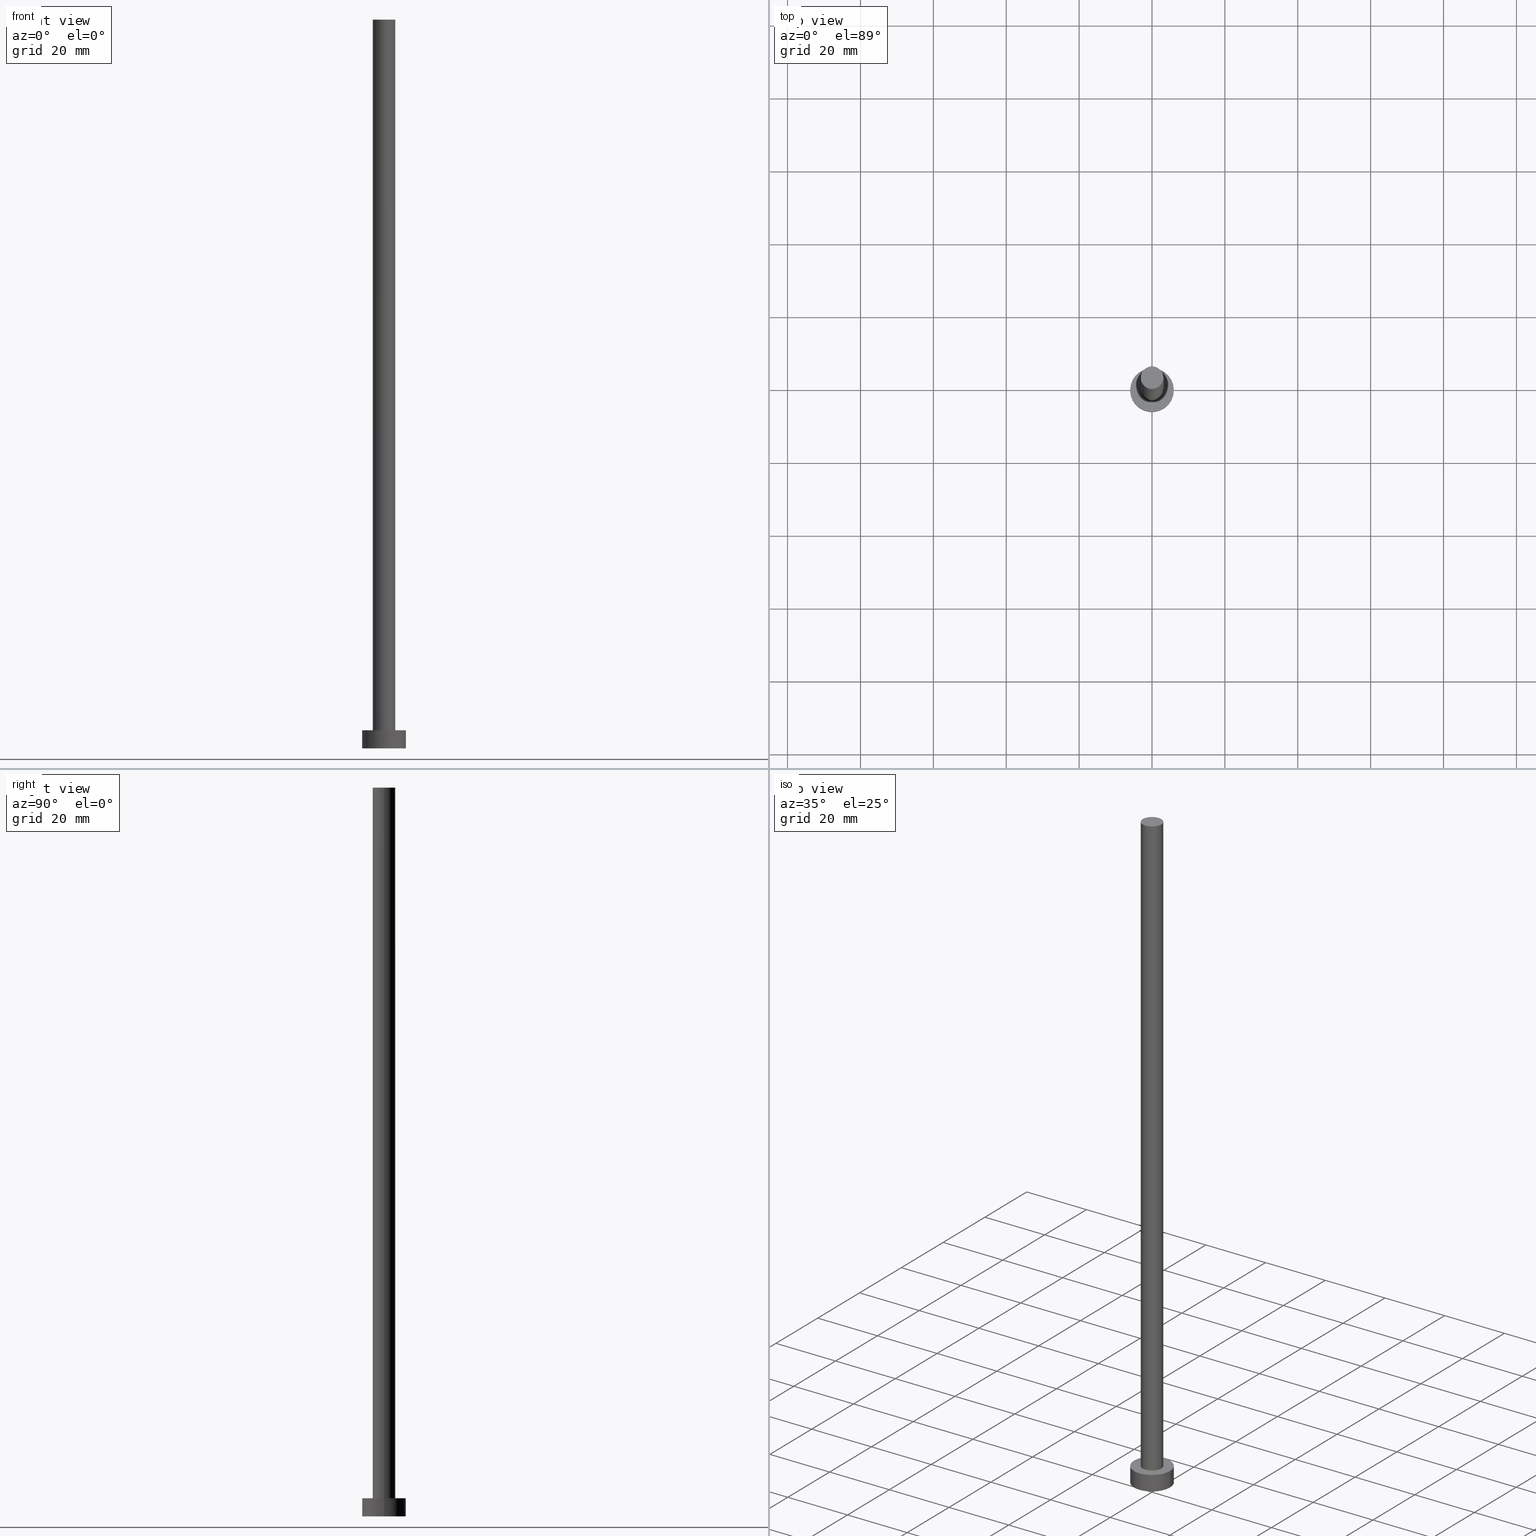
[diagram: canonical four-view strip — front | top / right | iso, engineering-drawing reading convention]
A machine part, canonical four-view strip (front | top / right | iso — engineering-drawing reading convention). The complete STEP part file that produces these views, byte-faithful:
ISO-10303-21;
HEADER;
FILE_DESCRIPTION (( 'STEP AP203' ),
    '1' );
FILE_NAME ('4e26.STEP',
    '2023-02-13T15:20:33',
    ( '' ),
    ( '' ),
    'SwSTEP 2.0',
    'SolidWorks 2019',
    '' );
FILE_SCHEMA (( 'CONFIG_CONTROL_DESIGN' ));
ENDSEC;

DATA;
#1 = LINE ( 'NONE', #76, #29 ) ;
#2 = DIRECTION ( 'NONE',  ( -0.000000000000000000, -0.000000000000000000, -1.000000000000000000 ) ) ;
#3 = CYLINDRICAL_SURFACE ( 'NONE', #182, 3.100000000000000089 ) ;
#4 = AXIS2_PLACEMENT_3D ( 'NONE', #11, #247, #166 ) ;
#5 = CARTESIAN_POINT ( 'NONE',  ( 0.000000000000000000, 0.000000000000000000, 200.0000000000000000 ) ) ;
#6 = CARTESIAN_POINT ( 'NONE',  ( -3.100000000000000089, 0.000000000000000000, 5.000000000000000000 ) ) ;
#7 = CC_DESIGN_PERSON_AND_ORGANIZATION_ASSIGNMENT ( #223, #117, ( #151 ) ) ;
#8 = DIRECTION ( 'NONE',  ( 1.000000000000000000, 0.000000000000000000, -0.000000000000000000 ) ) ;
#9 = ORIENTED_EDGE ( 'NONE', *, *, #19, .F. ) ;
#10 =( LENGTH_UNIT ( ) NAMED_UNIT ( * ) SI_UNIT ( .MILLI., .METRE. ) );
#11 = CARTESIAN_POINT ( 'NONE',  ( 0.000000000000000000, 0.000000000000000000, 5.000000000000000000 ) ) ;
#12 = CIRCLE ( 'NONE', #204, 3.100000000000000089 ) ;
#13 = LOCAL_TIME ( 16, 20, 33.00000000000000000, #255 ) ;
#14 = EDGE_LOOP ( 'NONE', ( #44, #181 ) ) ;
#15 = EDGE_CURVE ( 'NONE', #203, #107, #59, .T. ) ;
#16 = ORIENTED_EDGE ( 'NONE', *, *, #235, .F. ) ;
#17 = CALENDAR_DATE ( 2023, 13, 2 ) ;
#18 = DIRECTION ( 'NONE',  ( 0.000000000000000000, 0.000000000000000000, 1.000000000000000000 ) ) ;
#19 = EDGE_CURVE ( 'NONE', #49, #129, #228, .T. ) ;
#20 = SECURITY_CLASSIFICATION_LEVEL ( 'unclassified' ) ;
#21 = APPROVAL_DATE_TIME ( #192, #153 ) ;
#22 = DIRECTION ( 'NONE',  ( 1.000000000000000000, 0.000000000000000000, 0.000000000000000000 ) ) ;
#23 = DATE_AND_TIME ( #120, #80 ) ;
#24 = DIRECTION ( 'NONE',  ( 1.000000000000000000, 0.000000000000000000, 0.000000000000000000 ) ) ;
#25 = AXIS2_PLACEMENT_3D ( 'NONE', #188, #94, #207 ) ;
#26 = APPROVAL_PERSON_ORGANIZATION ( #51, #153, #237 ) ;
#27 = EDGE_CURVE ( 'NONE', #146, #160, #212, .T. ) ;
#28 = DIRECTION ( 'NONE',  ( 0.000000000000000000, 0.000000000000000000, 1.000000000000000000 ) ) ;
#29 = VECTOR ( 'NONE', #236, 1000.000000000000000 ) ;
#30 = ORIENTED_EDGE ( 'NONE', *, *, #15, .T. ) ;
#31 = EDGE_LOOP ( 'NONE', ( #145, #112 ) ) ;
#32 = EDGE_LOOP ( 'NONE', ( #41, #69 ) ) ;
#33 = LINE ( 'NONE', #73, #142 ) ;
#34 = DIRECTION ( 'NONE',  ( 1.000000000000000000, 0.000000000000000000, 0.000000000000000000 ) ) ;
#35 = ADVANCED_FACE ( 'NONE', ( #128 ), #93, .F. ) ;
#36 = AXIS2_PLACEMENT_3D ( 'NONE', #163, #250, #37 ) ;
#37 = DIRECTION ( 'NONE',  ( -1.000000000000000000, 0.000000000000000000, 0.000000000000000000 ) ) ;
#38 = CC_DESIGN_PERSON_AND_ORGANIZATION_ASSIGNMENT ( #122, #78, ( #104 ) ) ;
#39 = CARTESIAN_POINT ( 'NONE',  ( 0.000000000000000000, 0.000000000000000000, 5.000000000000000000 ) ) ;
#40 = FACE_OUTER_BOUND ( 'NONE', #62, .T. ) ;
#41 = ORIENTED_EDGE ( 'NONE', *, *, #27, .T. ) ;
#42 = DIRECTION ( 'NONE',  ( -0.000000000000000000, -0.000000000000000000, -1.000000000000000000 ) ) ;
#43 = CALENDAR_DATE ( 2023, 13, 2 ) ;
#44 = ORIENTED_EDGE ( 'NONE', *, *, #152, .F. ) ;
#45 = DESIGN_CONTEXT ( 'detailed design', #123, 'design' ) ;
#46 = APPROVAL ( #109, 'NEUR�EN�' ) ;
#47 = ORIENTED_EDGE ( 'NONE', *, *, #235, .T. ) ;
#48 = AXIS2_PLACEMENT_3D ( 'NONE', #133, #67, #113 ) ;
#49 = VERTEX_POINT ( 'NONE', #90 ) ;
#50 = CALENDAR_DATE ( 2023, 13, 2 ) ;
#51 = PERSON_AND_ORGANIZATION ( #232, #174 ) ;
#52 = CARTESIAN_POINT ( 'NONE',  ( -3.100000000000000089, 0.000000000000000000, 200.0000000000000000 ) ) ;
#53 = AXIS2_PLACEMENT_3D ( 'NONE', #206, #18, #191 ) ;
#54 = APPROVAL_STATUS ( 'not_yet_approved' ) ;
#55 = CARTESIAN_POINT ( 'NONE',  ( 6.000000000000000888, 7.347880794884120722E-16, 0.000000000000000000 ) ) ;
#56 = AXIS2_PLACEMENT_3D ( 'NONE', #159, #71, #34 ) ;
#57 = CALENDAR_DATE ( 2023, 13, 2 ) ;
#58 = APPROVAL ( #54, 'NEUR�EN�' ) ;
#59 = CIRCLE ( 'NONE', #56, 6.000000000000000888 ) ;
#60 = CC_DESIGN_PERSON_AND_ORGANIZATION_ASSIGNMENT ( #168, #231, ( #246 ) ) ;
#61 = PERSON_AND_ORGANIZATION ( #232, #174 ) ;
#62 = EDGE_LOOP ( 'NONE', ( #187, #66, #110, #225 ) ) ;
#63 =( NAMED_UNIT ( * ) SI_UNIT ( $, .STERADIAN. ) SOLID_ANGLE_UNIT ( ) );
#64 = AXIS2_PLACEMENT_3D ( 'NONE', #130, #89, #249 ) ;
#65 = APPROVAL_ROLE ( '' ) ;
#66 = ORIENTED_EDGE ( 'NONE', *, *, #157, .T. ) ;
#67 = DIRECTION ( 'NONE',  ( 0.000000000000000000, 0.000000000000000000, 1.000000000000000000 ) ) ;
#68 = DATE_AND_TIME ( #43, #101 ) ;
#69 = ORIENTED_EDGE ( 'NONE', *, *, #175, .T. ) ;
#70 = PRODUCT ( '4e26', '4e26', '', ( #189 ) ) ;
#71 = DIRECTION ( 'NONE',  ( 0.000000000000000000, 0.000000000000000000, 1.000000000000000000 ) ) ;
#72 = PERSON_AND_ORGANIZATION_ROLE ( 'design_supplier' ) ;
#73 = CARTESIAN_POINT ( 'NONE',  ( -6.000000000000000888, 0.000000000000000000, 5.000000000000000000 ) ) ;
#74 = PERSON_AND_ORGANIZATION ( #232, #174 ) ;
#75 = DIRECTION ( 'NONE',  ( 1.000000000000000000, 0.000000000000000000, 0.000000000000000000 ) ) ;
#76 = CARTESIAN_POINT ( 'NONE',  ( -3.100000000000000089, 0.000000000000000000, 200.0000000000000000 ) ) ;
#77 = CARTESIAN_POINT ( 'NONE',  ( 3.100000000000000089, 3.796405077356794918E-16, 5.000000000000000000 ) ) ;
#78 = PERSON_AND_ORGANIZATION_ROLE ( 'creator' ) ;
#79 = ADVANCED_BREP_SHAPE_REPRESENTATION ( '4e26', ( #184, #64 ), #95 ) ;
#80 = LOCAL_TIME ( 16, 20, 33.00000000000000000, #136 ) ;
#81 = PRODUCT_RELATED_PRODUCT_CATEGORY ( 'detail', '', ( #70 ) ) ;
#82 = LINE ( 'NONE', #156, #137 ) ;
#83 = EDGE_CURVE ( 'NONE', #49, #107, #33, .T. ) ;
#84 = AXIS2_PLACEMENT_3D ( 'NONE', #141, #28, #8 ) ;
#85 = LOCAL_TIME ( 16, 20, 33.00000000000000000, #170 ) ;
#86 = EDGE_LOOP ( 'NONE', ( #16, #9, #92, #131 ) ) ;
#87 = DIRECTION ( 'NONE',  ( 1.000000000000000000, 0.000000000000000000, 0.000000000000000000 ) ) ;
#88 = ORIENTED_EDGE ( 'NONE', *, *, #157, .F. ) ;
#89 = DIRECTION ( 'NONE',  ( 0.000000000000000000, 0.000000000000000000, 1.000000000000000000 ) ) ;
#90 = CARTESIAN_POINT ( 'NONE',  ( -6.000000000000000888, 0.000000000000000000, 5.000000000000000000 ) ) ;
#91 = APPROVAL_ROLE ( '' ) ;
#92 = ORIENTED_EDGE ( 'NONE', *, *, #83, .T. ) ;
#93 = PLANE ( 'NONE',  #48 ) ;
#94 = DIRECTION ( 'NONE',  ( 0.000000000000000000, 0.000000000000000000, 1.000000000000000000 ) ) ;
#95 =( GEOMETRIC_REPRESENTATION_CONTEXT ( 3 ) GLOBAL_UNCERTAINTY_ASSIGNED_CONTEXT ( ( #126 ) ) GLOBAL_UNIT_ASSIGNED_CONTEXT ( ( #10, #201, #63 ) ) REPRESENTATION_CONTEXT ( 'NONE', 'WORKASPACE' ) );
#96 = DIRECTION ( 'NONE',  ( 0.000000000000000000, 0.000000000000000000, 1.000000000000000000 ) ) ;
#97 = DIRECTION ( 'NONE',  ( -0.000000000000000000, -0.000000000000000000, -1.000000000000000000 ) ) ;
#98 = CIRCLE ( 'NONE', #154, 6.000000000000000888 ) ;
#99 = ADVANCED_FACE ( 'NONE', ( #162 ), #230, .T. ) ;
#100 = DIRECTION ( 'NONE',  ( 0.000000000000000000, 0.000000000000000000, 1.000000000000000000 ) ) ;
#101 = LOCAL_TIME ( 16, 20, 33.00000000000000000, #144 ) ;
#102 = DIRECTION ( 'NONE',  ( -1.000000000000000000, 0.000000000000000000, 0.000000000000000000 ) ) ;
#103 = APPROVAL_PERSON_ORGANIZATION ( #61, #46, #65 ) ;
#104 = PRODUCT_DEFINITION ( 'NEZN�M�', '', #151, #45 ) ;
#105 = APPLICATION_CONTEXT ( 'configuration controlled 3d designs of mechanical parts and assemblies' ) ;
#106 = ORIENTED_EDGE ( 'NONE', *, *, #196, .T. ) ;
#107 = VERTEX_POINT ( 'NONE', #111 ) ;
#108 = VECTOR ( 'NONE', #2, 1000.000000000000000 ) ;
#109 = APPROVAL_STATUS ( 'not_yet_approved' ) ;
#110 = ORIENTED_EDGE ( 'NONE', *, *, #180, .T. ) ;
#111 = CARTESIAN_POINT ( 'NONE',  ( -6.000000000000000888, 0.000000000000000000, 0.000000000000000000 ) ) ;
#112 = ORIENTED_EDGE ( 'NONE', *, *, #124, .T. ) ;
#113 = DIRECTION ( 'NONE',  ( 1.000000000000000000, 0.000000000000000000, -0.000000000000000000 ) ) ;
#114 = APPROVAL_STATUS ( 'not_yet_approved' ) ;
#115 = CC_DESIGN_APPROVAL ( #153, ( #246 ) ) ;
#116 = CC_DESIGN_DATE_AND_TIME_ASSIGNMENT ( #238, #158, ( #104 ) ) ;
#117 = PERSON_AND_ORGANIZATION_ROLE ( 'creator' ) ;
#118 = AXIS2_PLACEMENT_3D ( 'NONE', #222, #224, #177 ) ;
#119 = ADVANCED_FACE ( 'NONE', ( #132 ), #179, .T. ) ;
#120 = CALENDAR_DATE ( 2023, 13, 2 ) ;
#121 = CARTESIAN_POINT ( 'NONE',  ( 3.100000000000000089, 3.796405077356794918E-16, 200.0000000000000000 ) ) ;
#122 = PERSON_AND_ORGANIZATION ( #232, #174 ) ;
#123 = APPLICATION_CONTEXT ( 'configuration controlled 3d designs of mechanical parts and assemblies' ) ;
#124 = EDGE_CURVE ( 'NONE', #129, #49, #172, .T. ) ;
#125 = CC_DESIGN_SECURITY_CLASSIFICATION ( #246, ( #151 ) ) ;
#126 = UNCERTAINTY_MEASURE_WITH_UNIT (LENGTH_MEASURE( 1.000000000000000082E-05 ), #10, 'distance_accuracy_value', 'NONE');
#127 = EDGE_LOOP ( 'NONE', ( #88, #161, #106, #185 ) ) ;
#128 = FACE_OUTER_BOUND ( 'NONE', #205, .T. ) ;
#129 = VERTEX_POINT ( 'NONE', #254 ) ;
#130 = CARTESIAN_POINT ( 'NONE',  ( 0.000000000000000000, 0.000000000000000000, 0.000000000000000000 ) ) ;
#131 = ORIENTED_EDGE ( 'NONE', *, *, #169, .T. ) ;
#132 = FACE_OUTER_BOUND ( 'NONE', #32, .T. ) ;
#133 = CARTESIAN_POINT ( 'NONE',  ( 0.000000000000000000, 0.000000000000000000, 0.000000000000000000 ) ) ;
#134 = CC_DESIGN_PERSON_AND_ORGANIZATION_ASSIGNMENT ( #186, #149, ( #70 ) ) ;
#135 = FACE_BOUND ( 'NONE', #14, .T. ) ;
#136 = COORDINATED_UNIVERSAL_TIME_OFFSET ( 1, 0, .AHEAD. ) ;
#137 = VECTOR ( 'NONE', #42, 1000.000000000000000 ) ;
#138 = CC_DESIGN_DATE_AND_TIME_ASSIGNMENT ( #23, #167, ( #246 ) ) ;
#139 = CYLINDRICAL_SURFACE ( 'NONE', #221, 6.000000000000000888 ) ;
#140 = DIRECTION ( 'NONE',  ( -0.000000000000000000, -0.000000000000000000, -1.000000000000000000 ) ) ;
#141 = CARTESIAN_POINT ( 'NONE',  ( 0.000000000000000000, 0.000000000000000000, 5.000000000000000000 ) ) ;
#142 = VECTOR ( 'NONE', #97, 1000.000000000000000 ) ;
#143 = ORIENTED_EDGE ( 'NONE', *, *, #83, .F. ) ;
#144 = COORDINATED_UNIVERSAL_TIME_OFFSET ( 1, 0, .AHEAD. ) ;
#145 = ORIENTED_EDGE ( 'NONE', *, *, #19, .T. ) ;
#146 = VERTEX_POINT ( 'NONE', #52 ) ;
#147 = COORDINATED_UNIVERSAL_TIME_OFFSET ( 1, 0, .AHEAD. ) ;
#148 = ADVANCED_FACE ( 'NONE', ( #135, #210 ), #215, .T. ) ;
#149 = PERSON_AND_ORGANIZATION_ROLE ( 'design_owner' ) ;
#150 = DIRECTION ( 'NONE',  ( 0.000000000000000000, 0.000000000000000000, 1.000000000000000000 ) ) ;
#151 = PRODUCT_DEFINITION_FORMATION_WITH_SPECIFIED_SOURCE ( 'LIBOVOLN�', '', #70, .NOT_KNOWN. ) ;
#152 = EDGE_CURVE ( 'NONE', #227, #164, #12, .T. ) ;
#153 = APPROVAL ( #114, 'NEUR�EN�' ) ;
#154 = AXIS2_PLACEMENT_3D ( 'NONE', #197, #100, #173 ) ;
#155 = CIRCLE ( 'NONE', #199, 3.100000000000000089 ) ;
#156 = CARTESIAN_POINT ( 'NONE',  ( 6.000000000000000888, 7.347880794884120722E-16, 5.000000000000000000 ) ) ;
#157 = EDGE_CURVE ( 'NONE', #160, #164, #217, .T. ) ;
#158 = DATE_TIME_ROLE ( 'creation_date' ) ;
#159 = CARTESIAN_POINT ( 'NONE',  ( 0.000000000000000000, 0.000000000000000000, 0.000000000000000000 ) ) ;
#160 = VERTEX_POINT ( 'NONE', #121 ) ;
#161 = ORIENTED_EDGE ( 'NONE', *, *, #27, .F. ) ;
#162 = FACE_OUTER_BOUND ( 'NONE', #226, .T. ) ;
#163 = CARTESIAN_POINT ( 'NONE',  ( 0.000000000000000000, 0.000000000000000000, 5.000000000000000000 ) ) ;
#164 = VERTEX_POINT ( 'NONE', #77 ) ;
#165 = DATE_AND_TIME ( #50, #209 ) ;
#166 = DIRECTION ( 'NONE',  ( 1.000000000000000000, 0.000000000000000000, 0.000000000000000000 ) ) ;
#167 = DATE_TIME_ROLE ( 'classification_date' ) ;
#168 = PERSON_AND_ORGANIZATION ( #232, #174 ) ;
#169 = EDGE_CURVE ( 'NONE', #107, #203, #98, .T. ) ;
#170 = COORDINATED_UNIVERSAL_TIME_OFFSET ( 1, 0, .AHEAD. ) ;
#171 = DIRECTION ( 'NONE',  ( 0.000000000000000000, 0.000000000000000000, 1.000000000000000000 ) ) ;
#172 = CIRCLE ( 'NONE', #25, 6.000000000000000888 ) ;
#173 = DIRECTION ( 'NONE',  ( 1.000000000000000000, 0.000000000000000000, 0.000000000000000000 ) ) ;
#174 = ORGANIZATION ( 'NEUR�EN�', 'NEUR�EN�', '' ) ;
#175 = EDGE_CURVE ( 'NONE', #160, #146, #176, .T. ) ;
#176 = CIRCLE ( 'NONE', #234, 3.100000000000000089 ) ;
#177 = DIRECTION ( 'NONE',  ( -1.000000000000000000, 0.000000000000000000, 0.000000000000000000 ) ) ;
#178 = ORIENTED_EDGE ( 'NONE', *, *, #169, .F. ) ;
#179 = PLANE ( 'NONE',  #53 ) ;
#180 = EDGE_CURVE ( 'NONE', #164, #227, #155, .T. ) ;
#181 = ORIENTED_EDGE ( 'NONE', *, *, #180, .F. ) ;
#182 = AXIS2_PLACEMENT_3D ( 'NONE', #241, #198, #102 ) ;
#183 = PRODUCT_DEFINITION_SHAPE ( 'NONE', 'NONE',  #104 ) ;
#184 = MANIFOLD_SOLID_BREP ( 'P�idat vysunut�m3', #245 ) ;
#185 = ORIENTED_EDGE ( 'NONE', *, *, #152, .T. ) ;
#186 = PERSON_AND_ORGANIZATION ( #232, #174 ) ;
#187 = ORIENTED_EDGE ( 'NONE', *, *, #175, .F. ) ;
#188 = CARTESIAN_POINT ( 'NONE',  ( 0.000000000000000000, 0.000000000000000000, 5.000000000000000000 ) ) ;
#189 = MECHANICAL_CONTEXT ( 'NONE', #105, 'mechanical' ) ;
#190 = CARTESIAN_POINT ( 'NONE',  ( 0.000000000000000000, 0.000000000000000000, 200.0000000000000000 ) ) ;
#191 = DIRECTION ( 'NONE',  ( 1.000000000000000000, 0.000000000000000000, -0.000000000000000000 ) ) ;
#192 = DATE_AND_TIME ( #17, #13 ) ;
#193 = CARTESIAN_POINT ( 'NONE',  ( 0.000000000000000000, 0.000000000000000000, 5.000000000000000000 ) ) ;
#194 = CC_DESIGN_APPROVAL ( #58, ( #104 ) ) ;
#195 = FACE_OUTER_BOUND ( 'NONE', #127, .T. ) ;
#196 = EDGE_CURVE ( 'NONE', #146, #227, #1, .T. ) ;
#197 = CARTESIAN_POINT ( 'NONE',  ( 0.000000000000000000, 0.000000000000000000, 0.000000000000000000 ) ) ;
#198 = DIRECTION ( 'NONE',  ( -0.000000000000000000, -0.000000000000000000, -1.000000000000000000 ) ) ;
#199 = AXIS2_PLACEMENT_3D ( 'NONE', #193, #171, #22 ) ;
#200 = CYLINDRICAL_SURFACE ( 'NONE', #118, 3.100000000000000089 ) ;
#201 =( NAMED_UNIT ( * ) PLANE_ANGLE_UNIT ( ) SI_UNIT ( $, .RADIAN. ) );
#202 = AXIS2_PLACEMENT_3D ( 'NONE', #190, #96, #87 ) ;
#203 = VERTEX_POINT ( 'NONE', #55 ) ;
#204 = AXIS2_PLACEMENT_3D ( 'NONE', #208, #211, #75 ) ;
#205 = EDGE_LOOP ( 'NONE', ( #178, #248 ) ) ;
#206 = CARTESIAN_POINT ( 'NONE',  ( 0.000000000000000000, 0.000000000000000000, 200.0000000000000000 ) ) ;
#207 = DIRECTION ( 'NONE',  ( 1.000000000000000000, 0.000000000000000000, 0.000000000000000000 ) ) ;
#208 = CARTESIAN_POINT ( 'NONE',  ( 0.000000000000000000, 0.000000000000000000, 5.000000000000000000 ) ) ;
#209 = LOCAL_TIME ( 16, 20, 33.00000000000000000, #147 ) ;
#210 = FACE_OUTER_BOUND ( 'NONE', #31, .T. ) ;
#211 = DIRECTION ( 'NONE',  ( 0.000000000000000000, 0.000000000000000000, 1.000000000000000000 ) ) ;
#212 = CIRCLE ( 'NONE', #202, 3.100000000000000089 ) ;
#213 = FACE_OUTER_BOUND ( 'NONE', #86, .T. ) ;
#214 = APPROVAL_PERSON_ORGANIZATION ( #251, #58, #91 ) ;
#215 = PLANE ( 'NONE',  #84 ) ;
#216 = ADVANCED_FACE ( 'NONE', ( #213 ), #139, .T. ) ;
#217 = LINE ( 'NONE', #239, #108 ) ;
#218 = DIRECTION ( 'NONE',  ( -1.000000000000000000, 0.000000000000000000, 0.000000000000000000 ) ) ;
#219 = CC_DESIGN_PERSON_AND_ORGANIZATION_ASSIGNMENT ( #74, #72, ( #151 ) ) ;
#220 = APPROVAL_DATE_TIME ( #165, #58 ) ;
#221 = AXIS2_PLACEMENT_3D ( 'NONE', #39, #140, #218 ) ;
#222 = CARTESIAN_POINT ( 'NONE',  ( 0.000000000000000000, 0.000000000000000000, 200.0000000000000000 ) ) ;
#223 = PERSON_AND_ORGANIZATION ( #232, #174 ) ;
#224 = DIRECTION ( 'NONE',  ( -0.000000000000000000, -0.000000000000000000, -1.000000000000000000 ) ) ;
#225 = ORIENTED_EDGE ( 'NONE', *, *, #196, .F. ) ;
#226 = EDGE_LOOP ( 'NONE', ( #252, #47, #30, #143 ) ) ;
#227 = VERTEX_POINT ( 'NONE', #6 ) ;
#228 = CIRCLE ( 'NONE', #4, 6.000000000000000888 ) ;
#229 = ADVANCED_FACE ( 'NONE', ( #195 ), #3, .T. ) ;
#230 = CYLINDRICAL_SURFACE ( 'NONE', #36, 6.000000000000000888 ) ;
#231 = PERSON_AND_ORGANIZATION_ROLE ( 'classification_officer' ) ;
#232 = PERSON ( 'NEUR�EN�', 'NEUR�EN�', 'NEUR�EN�', ('NEUR�EN�'), ('NEUR�EN�'), ('NEUR�EN�') ) ;
#233 = APPLICATION_PROTOCOL_DEFINITION ( 'international standard', 'config_control_design', 1994, #123 ) ;
#234 = AXIS2_PLACEMENT_3D ( 'NONE', #5, #150, #24 ) ;
#235 = EDGE_CURVE ( 'NONE', #129, #203, #82, .T. ) ;
#236 = DIRECTION ( 'NONE',  ( -0.000000000000000000, -0.000000000000000000, -1.000000000000000000 ) ) ;
#237 = APPROVAL_ROLE ( '' ) ;
#238 = DATE_AND_TIME ( #57, #85 ) ;
#239 = CARTESIAN_POINT ( 'NONE',  ( 3.100000000000000089, 3.796405077356794918E-16, 200.0000000000000000 ) ) ;
#240 = SHAPE_DEFINITION_REPRESENTATION ( #183, #79 ) ;
#241 = CARTESIAN_POINT ( 'NONE',  ( 0.000000000000000000, 0.000000000000000000, 200.0000000000000000 ) ) ;
#242 = APPLICATION_PROTOCOL_DEFINITION ( 'international standard', 'config_control_design', 1994, #105 ) ;
#243 = APPROVAL_DATE_TIME ( #68, #46 ) ;
#244 = ADVANCED_FACE ( 'NONE', ( #40 ), #200, .T. ) ;
#245 = CLOSED_SHELL ( 'NONE', ( #244, #99, #216, #148, #35, #229, #119 ) ) ;
#246 = SECURITY_CLASSIFICATION ( '', '', #20 ) ;
#247 = DIRECTION ( 'NONE',  ( 0.000000000000000000, 0.000000000000000000, 1.000000000000000000 ) ) ;
#248 = ORIENTED_EDGE ( 'NONE', *, *, #15, .F. ) ;
#249 = DIRECTION ( 'NONE',  ( 1.000000000000000000, 0.000000000000000000, 0.000000000000000000 ) ) ;
#250 = DIRECTION ( 'NONE',  ( -0.000000000000000000, -0.000000000000000000, -1.000000000000000000 ) ) ;
#251 = PERSON_AND_ORGANIZATION ( #232, #174 ) ;
#252 = ORIENTED_EDGE ( 'NONE', *, *, #124, .F. ) ;
#253 = CC_DESIGN_APPROVAL ( #46, ( #151 ) ) ;
#254 = CARTESIAN_POINT ( 'NONE',  ( 6.000000000000000888, 7.347880794884120722E-16, 5.000000000000000000 ) ) ;
#255 = COORDINATED_UNIVERSAL_TIME_OFFSET ( 1, 0, .AHEAD. ) ;
ENDSEC;
END-ISO-10303-21;
